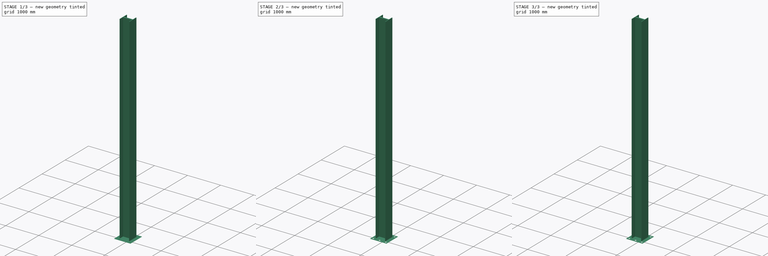
[diagram: build sequence overview — one tinted view per stage of 3, left to right]
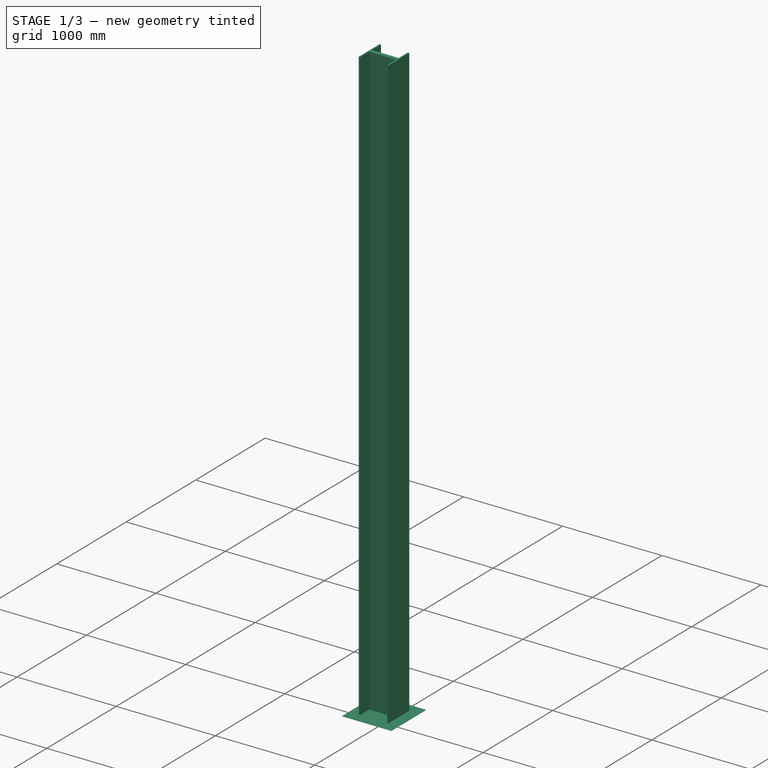
[diagram: stage 1 of 3 — iso view after this stage's code; geometry added in this stage tinted green]
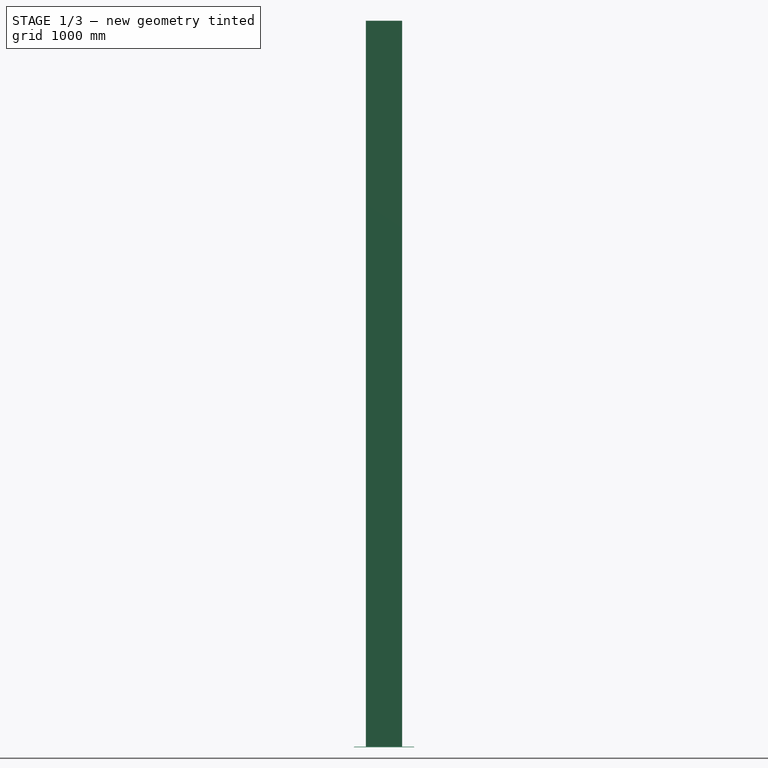
[diagram: stage 1 of 3 — front view after this stage's code; geometry added in this stage tinted green]
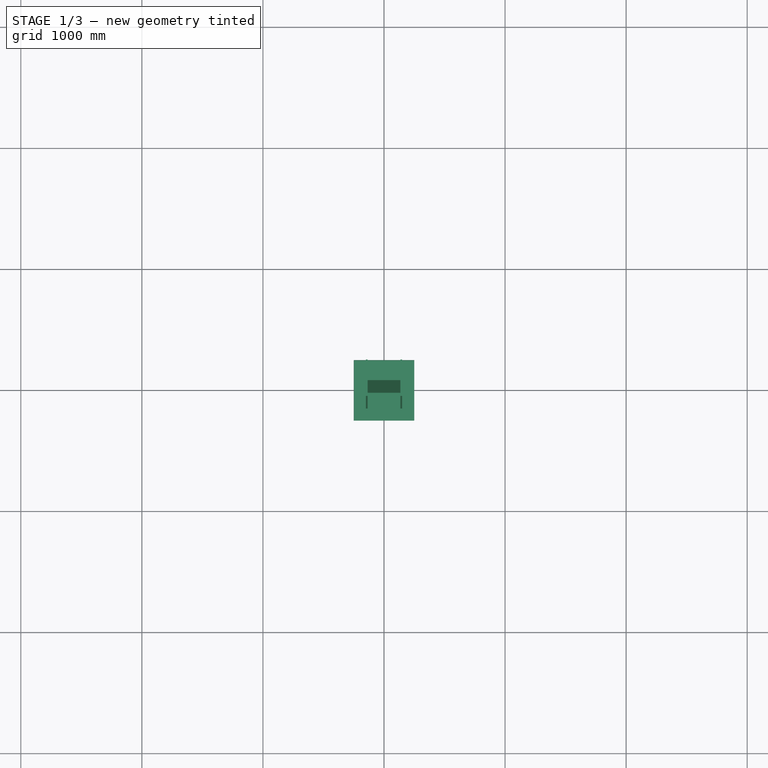
[diagram: stage 1 of 3 — top view after this stage's code; geometry added in this stage tinted green]
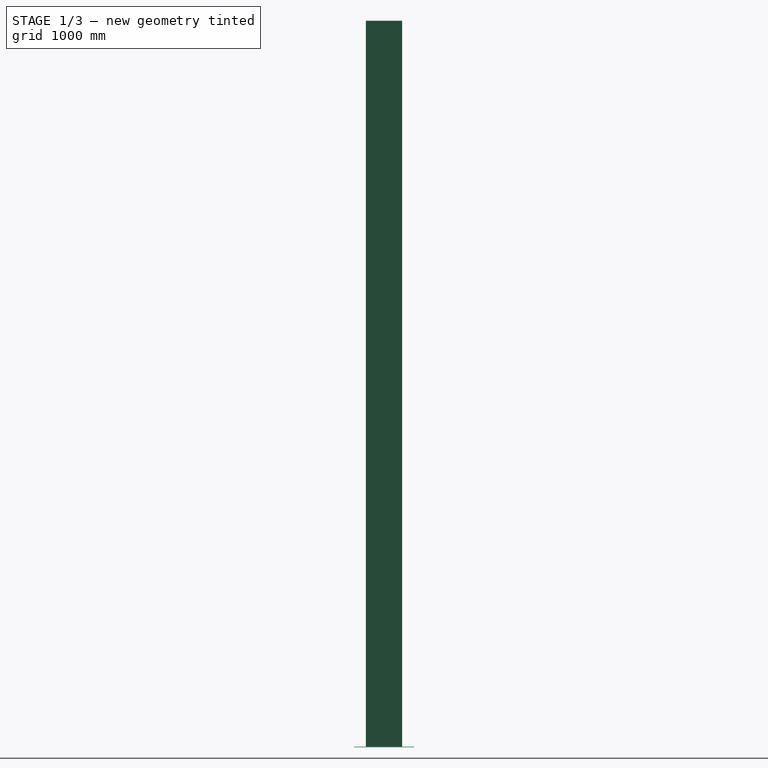
[diagram: stage 1 of 3 — right view after this stage's code; geometry added in this stage tinted green]
FCSTD DOCUMENT  (FreeCAD 0.21R33668 +26 (Git))
Label: support_pole
License: All rights reserved
LicenseURL: https://en.wikipedia.org/wiki/All_rights_reserved
objects: PartDesign::Fillet×4, Sketcher::SketchObject×3, PartDesign::Pad×2, PartDesign::Chamfer×1, PartDesign::Pocket×1, PartDesign::Body×1
note: 20 computed .brp shape members not serialized (recipe doc carries the construction recipe); baked Part::Feature solids carry a one-line shape summary decoded from their .brp

FEATURE [Sketcher::SketchObject] Sketch
  FullyConstrained = true
  MapMode = 5
  Support = -> [XY_Plane]
  sketch-geometry (12):
    g0: LineSegment StartX=135 StartY=20 StartZ=0 EndX=-135 EndY=20 EndZ=0
    g1: LineSegment StartX=-135 StartY=20 StartZ=0 EndX=-135 EndY=150 EndZ=0
    g2: LineSegment StartX=-135 StartY=150 StartZ=0 EndX=-150 EndY=150 EndZ=0
    g3: LineSegment StartX=-150 StartY=150 StartZ=0 EndX=-150 EndY=-150 EndZ=0
    g4: LineSegment StartX=-150 StartY=-150 StartZ=0 EndX=-135 EndY=-150 EndZ=0
    g5: LineSegment StartX=-135 StartY=-150 StartZ=0 EndX=-135 EndY=-20 EndZ=0
    g6: LineSegment StartX=-135 StartY=-20 StartZ=0 EndX=135 EndY=-20 EndZ=0
    g7: LineSegment StartX=135 StartY=-20 StartZ=0 EndX=135 EndY=-150 EndZ=0
    g8: LineSegment StartX=135 StartY=-150 StartZ=0 EndX=150 EndY=-150 EndZ=0
    g9: LineSegment StartX=150 StartY=-150 StartZ=0 EndX=150 EndY=150 EndZ=0
    g10: LineSegment StartX=150 StartY=150 StartZ=0 EndX=135 EndY=150 EndZ=0
    g11: LineSegment StartX=135 StartY=150 StartZ=0 EndX=135 EndY=20 EndZ=0
  constraints (32):
    c: Horizontal(g0)
    c: Coincident(g0,g1)
    c: Vertical(g1)
    c: Coincident(g1,g2)
    c: Horizontal(g2)
    c: Coincident(g2,g3)
    c: Vertical(g3)
    c: Coincident(g3,g4)
    c: Horizontal(g4)
    c: Coincident(g4,g5)
    c: Vertical(g5)
    c: Coincident(g5,g6)
    c: Coincident(g6,g7)
    c: Vertical(g7)
    c: Coincident(g7,g8)
    c: Horizontal(g8)
    c: Coincident(g8,g9)
    c: Coincident(g9,g10)
    c: Horizontal(g10)
    c: Coincident(g10,g11)
    c: Coincident(g11,g0)
    c: Vertical(g10,g0)
    c: Symmetric(g9,g2,g-2)
    c: Symmetric(g8,g3,g-2)
    c: Symmetric(g6,g0,g-1)
    c: Symmetric(g0,g5,g-1)
    c: Equal(g7,g11)
    c: Equal(g2,g10)
    c: DistanceX(g2,g9) = 300
    c: DistanceY(g3,g2) = 300
    c: DistanceX(g5,g6) = 270
    c: DistanceY(g4,g5) = 130
FEATURE [PartDesign::Pad] Pad
  Direction = (0,0,1)
  Length = 5995
  Length2 = 10
  Profile = -> Sketch
  ReferenceAxis = -> Sketch [N_Axis]
  Type = 0
FEATURE [Sketcher::SketchObject] Sketch001
  FullyConstrained = true
  MapMode = 5
  Support = -> [XY_Plane]
  sketch-geometry (5):
    g0: LineSegment StartX=-250 StartY=250 StartZ=0 EndX=-250 EndY=-250 EndZ=0
    g1: LineSegment StartX=-250 StartY=-250 StartZ=0 EndX=250 EndY=-250 EndZ=0
    g2: LineSegment StartX=250 StartY=-250 StartZ=0 EndX=250 EndY=250 EndZ=0
    g3: LineSegment StartX=250 StartY=250 StartZ=0 EndX=-250 EndY=250 EndZ=0
    g4: GeomPoint X=0 Y=0 Z=0
  constraints (12):
    c: Coincident(g0,g1)
    c: Coincident(g1,g2)
    c: Coincident(g2,g3)
    c: Coincident(g3,g0)
    c: Horizontal(g1)
    c: Horizontal(g3)
    c: Vertical(g0)
    c: Vertical(g2)
    c: Symmetric(g1,g0,g4)
    c: Coincident(g4,g-1)
    c: Distance(g3) = 500
    c: Distance(g0) = 500
FEATURE [PartDesign::Pad] Pad001
  BaseFeature = -> Pad
  Direction = (0,0,1)
  Length = 5
  Length2 = 10
  Profile = -> Sketch001
  ReferenceAxis = -> Sketch001 [N_Axis]
  Reversed = true
  Type = 0
FEATURE [PartDesign::Chamfer] Chamfer
  Angle = 45
  Base = -> Pad001 [Edge11,Edge9,Edge6,Edge3]
  BaseFeature = -> Pad001
  ChamferType = 0
  FlipDirection = false
  Size = 4.5
  Size2 = 1
  SupportTransform = false
  UseAllEdges = false
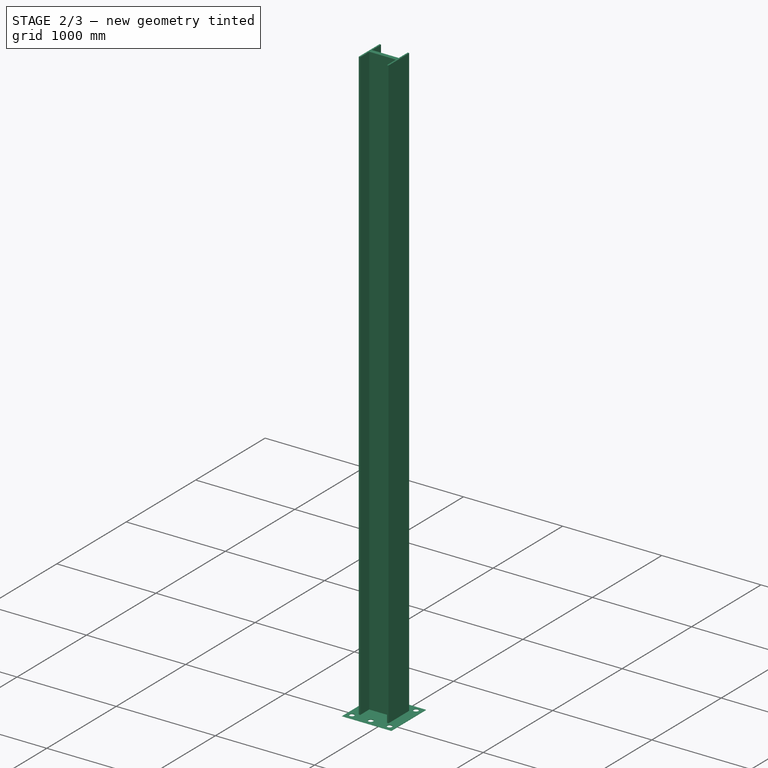
[diagram: stage 2 of 3 — iso view after this stage's code; geometry added in this stage tinted green]
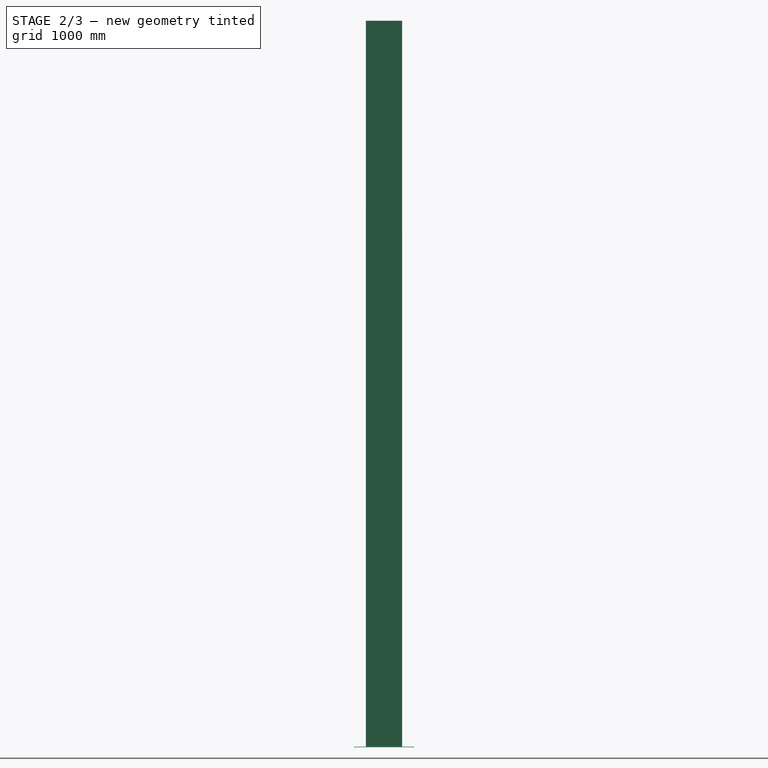
[diagram: stage 2 of 3 — front view after this stage's code; geometry added in this stage tinted green]
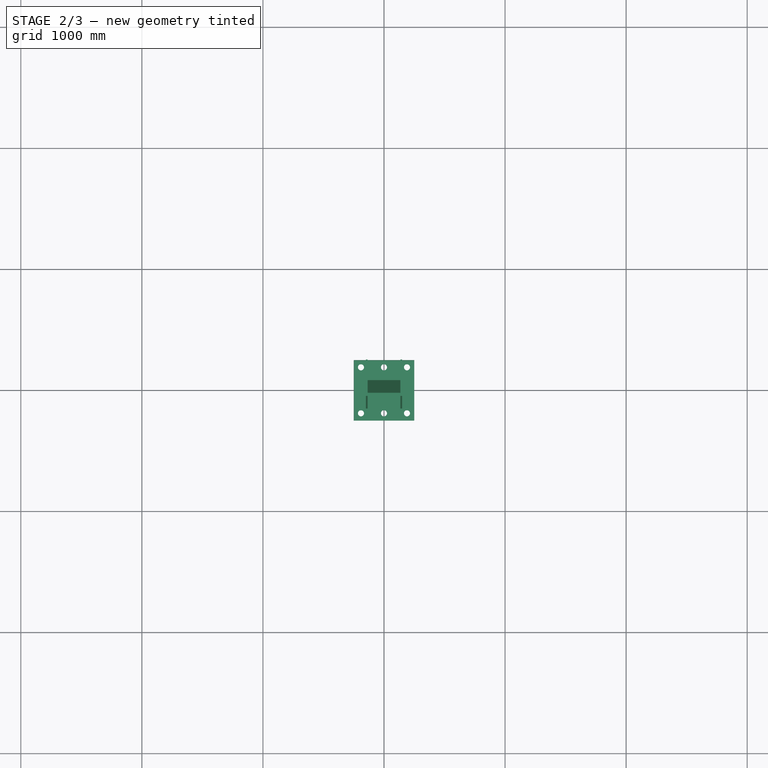
[diagram: stage 2 of 3 — top view after this stage's code; geometry added in this stage tinted green]
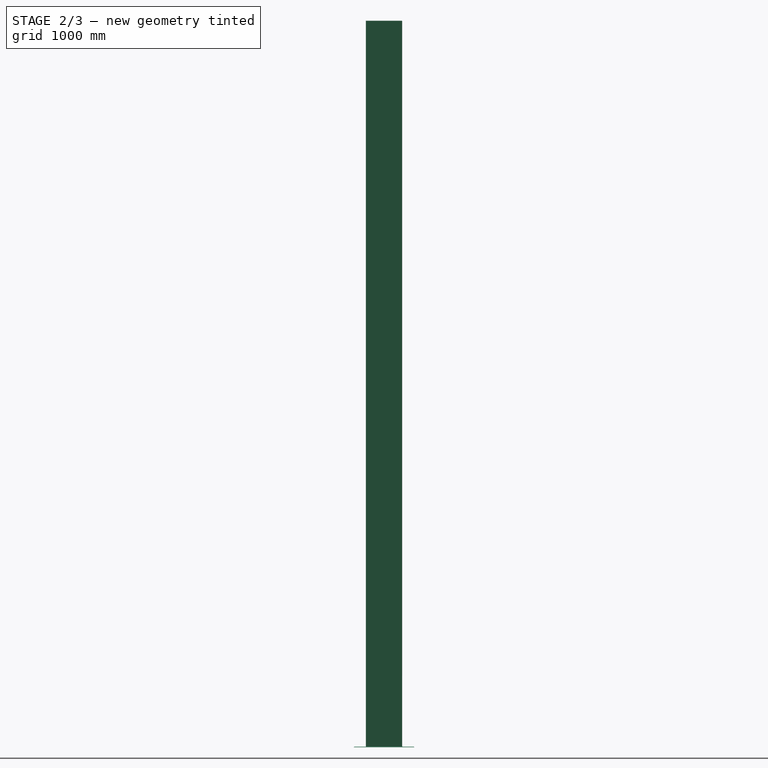
[diagram: stage 2 of 3 — right view after this stage's code; geometry added in this stage tinted green]
FEATURE [Sketcher::SketchObject] Sketch002
  ExternalGeometry = -> [Chamfer]
  FullyConstrained = true
  MapMode = 5
  Support = -> [Chamfer]
  sketch-geometry (6):
    g0: Circle CenterX=-190 CenterY=190 CenterZ=0 NormalX=0 NormalY=0 NormalZ=1 AngleXU=0 Radius=25
    g1: Circle CenterX=190 CenterY=190 CenterZ=0 NormalX=0 NormalY=0 NormalZ=1 AngleXU=0 Radius=25
    g2: Circle CenterX=190 CenterY=-190 CenterZ=0 NormalX=0 NormalY=0 NormalZ=1 AngleXU=0 Radius=25
    g3: Circle CenterX=-190 CenterY=-190 CenterZ=0 NormalX=0 NormalY=0 NormalZ=1 AngleXU=0 Radius=25
    g4: Circle CenterX=0 CenterY=190 CenterZ=0 NormalX=0 NormalY=0 NormalZ=1 AngleXU=0 Radius=25
    g5: Circle CenterX=0 CenterY=-190 CenterZ=0 NormalX=0 NormalY=0 NormalZ=1 AngleXU=0 Radius=25
  constraints (15):
    c: Symmetric(g0,g1,g-2)
    c: Symmetric(g2,g3,g-2)
    c: Symmetric(g2,g1,g-1)
    c: Equal(g0,g1)
    c: Equal(g0,g2)
    c: Equal(g0,g3)
    c: Radius(g0) = 25
    c: Distance(g0,g-3) = 60
    c: Distance(g0,g-4) = 60
    c: PointOnObject(g4,g-2)
    c: PointOnObject(g5,g-2)
    c: Equal(g5,g3)
    c: Equal(g3,g4)
    c: Horizontal(g5,g3)
    c: Horizontal(g4,g0)
FEATURE [PartDesign::Pocket] Pocket
  BaseFeature = -> Chamfer
  Direction = (0,0,-1)
  Length = 5
  Length2 = 5
  Profile = -> Sketch002
  ReferenceAxis = -> Sketch002 [N_Axis]
  Type = 0
FEATURE [PartDesign::Fillet] Fillet
  Base = -> Pocket [Face20]
  BaseFeature = -> Pocket
  Radius = 2.5
  SupportTransform = false
  UseAllEdges = false
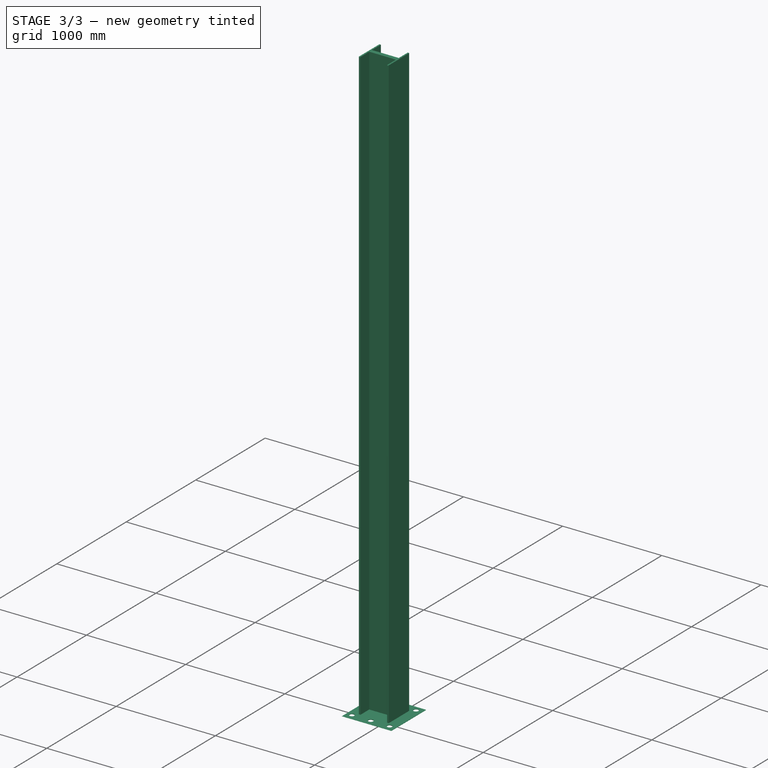
[diagram: stage 3 of 3 — iso view after this stage's code; geometry added in this stage tinted green]
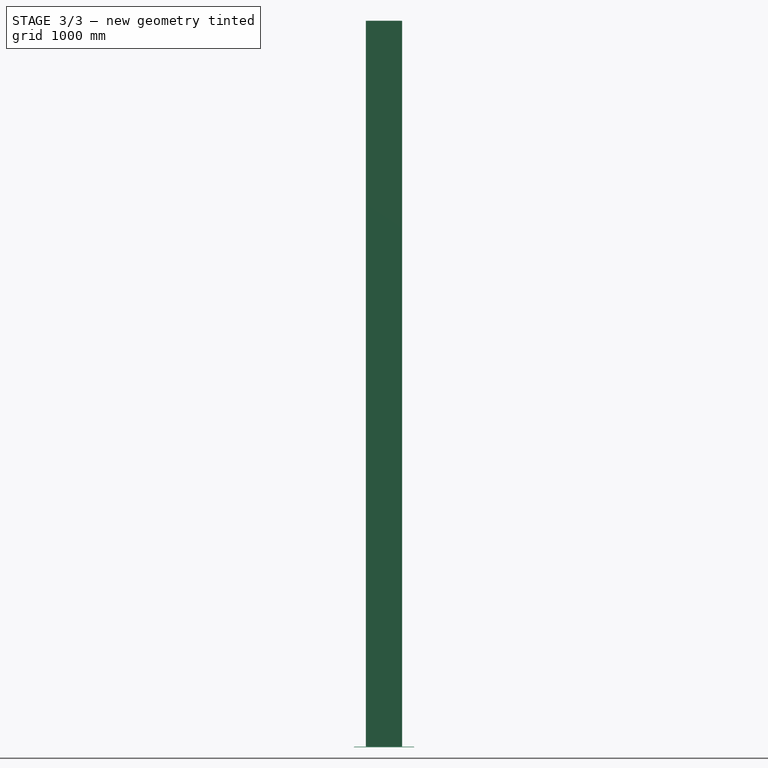
[diagram: stage 3 of 3 — front view after this stage's code; geometry added in this stage tinted green]
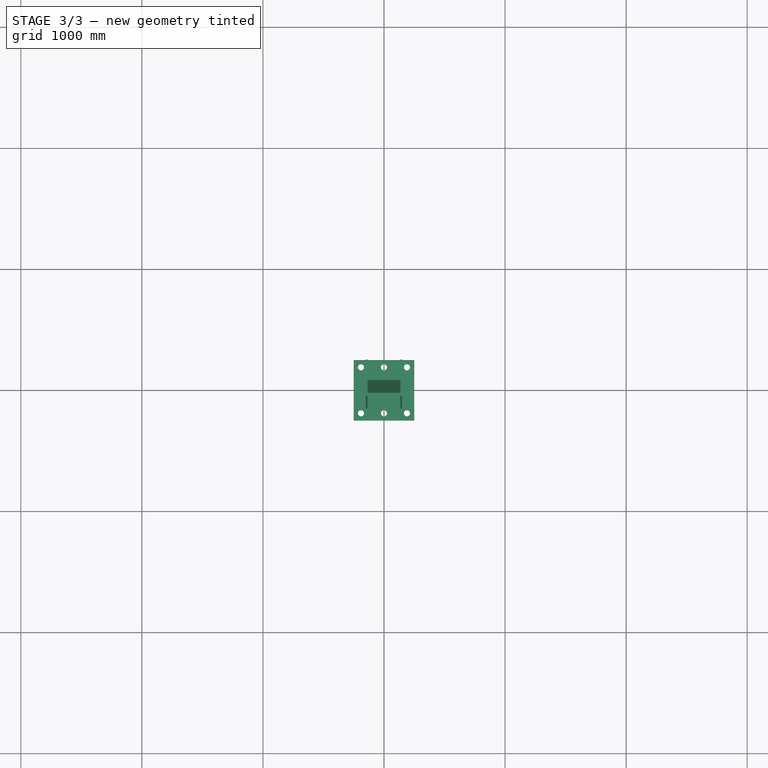
[diagram: stage 3 of 3 — top view after this stage's code; geometry added in this stage tinted green]
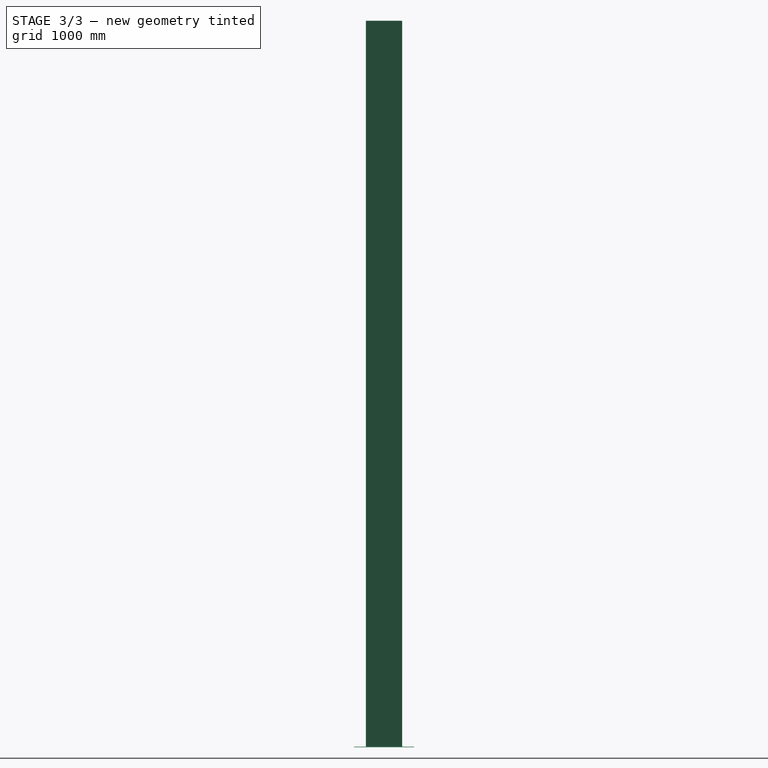
[diagram: stage 3 of 3 — right view after this stage's code; geometry added in this stage tinted green]
FEATURE [PartDesign::Fillet] Fillet001
  Base = -> Fillet [Face8]
  BaseFeature = -> Fillet
  Radius = 2.5
  SupportTransform = false
  UseAllEdges = false
FEATURE [PartDesign::Fillet] Fillet002
  Base = -> Fillet001 [Face16]
  BaseFeature = -> Fillet001
  Radius = 2.5
  SupportTransform = false
  UseAllEdges = false
FEATURE [PartDesign::Fillet] Fillet003
  Base = -> Fillet002 [Face15]
  BaseFeature = -> Fillet002
  Radius = 2.5
  SupportTransform = false
  UseAllEdges = false
FEATURE [PartDesign::Body] Body
  Group = -> [Sketch,Pad,Sketch001,Pad001,Chamfer,Sketch002,Pocket,Fillet,Fillet001,Fillet002,Fillet003]
  Origin = -> Origin
  Tip = -> Fillet003
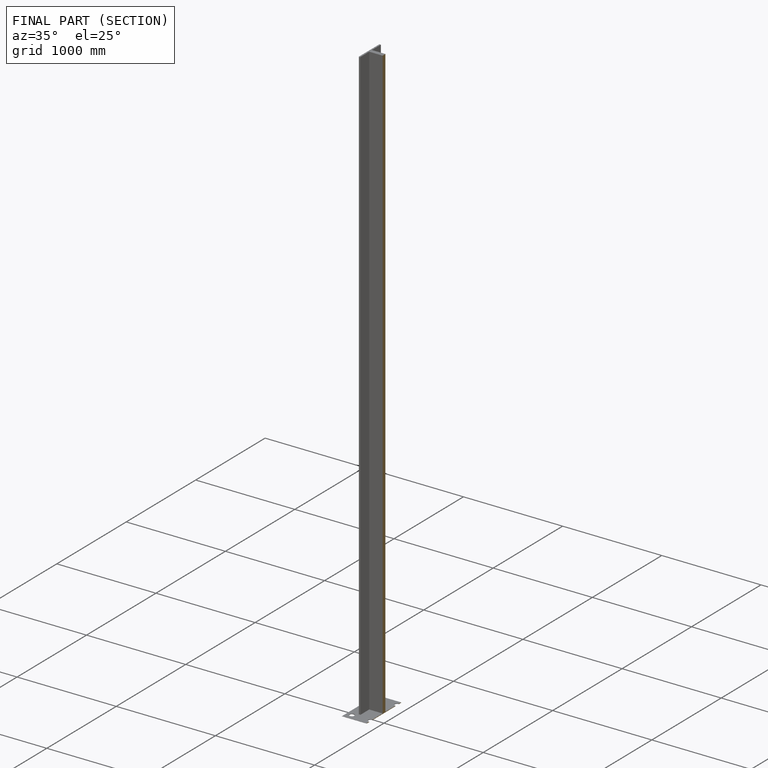
[diagram: finished part — half-section view (interior)]
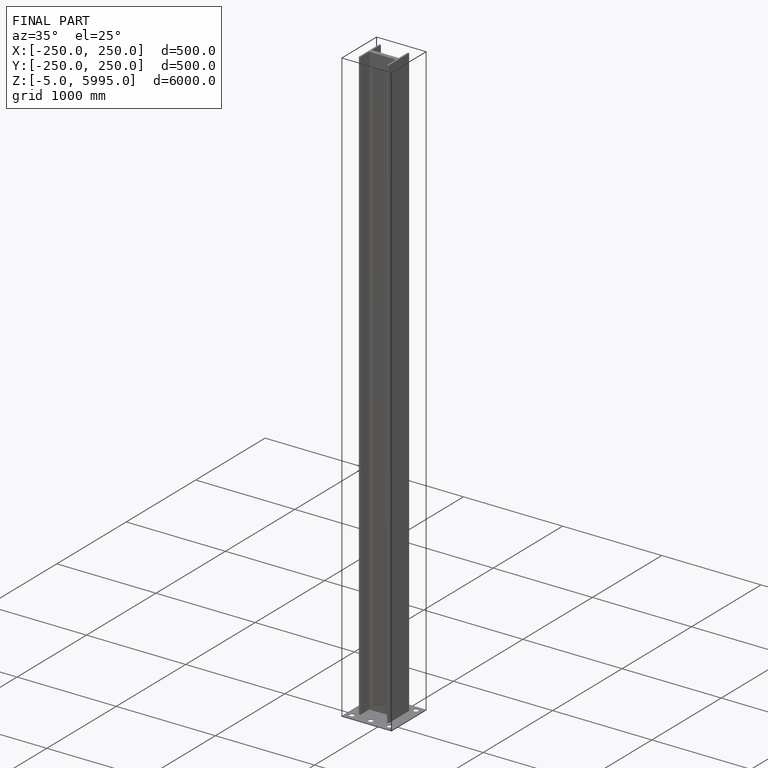
[diagram: finished part — iso view with bounding-box wireframe]
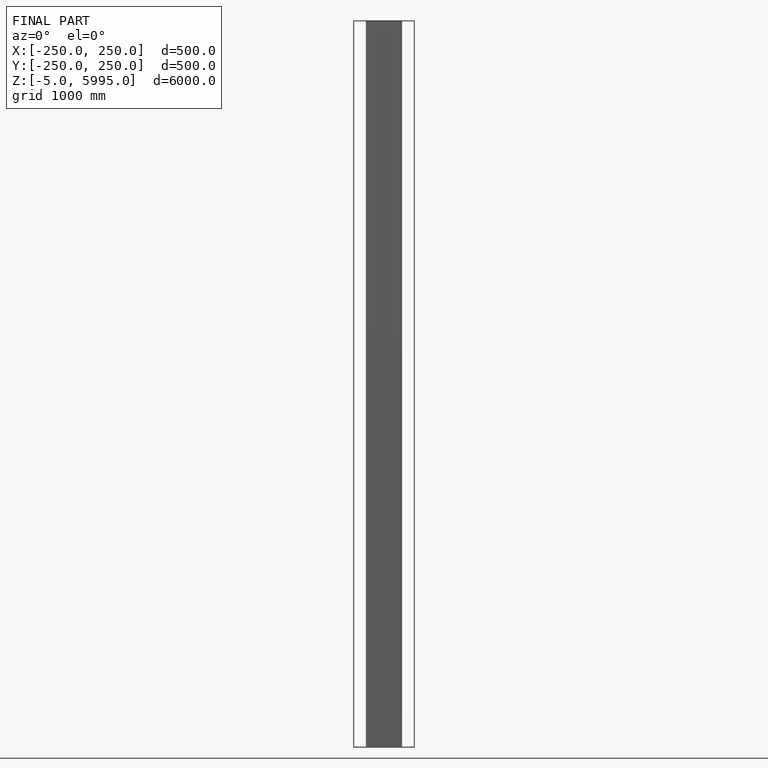
[diagram: finished part — front view with bounding-box wireframe]
